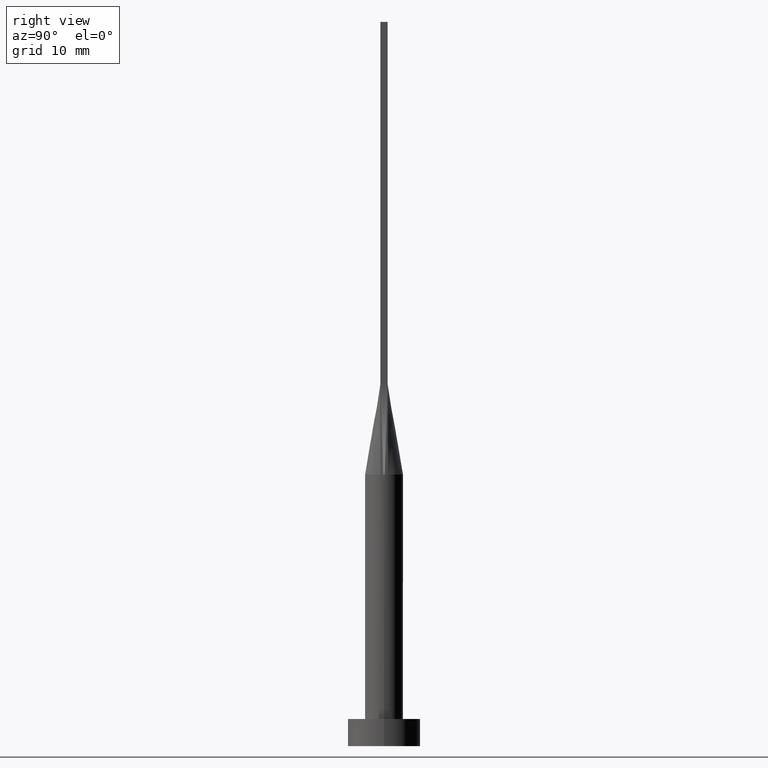
[diagram: clean part render]
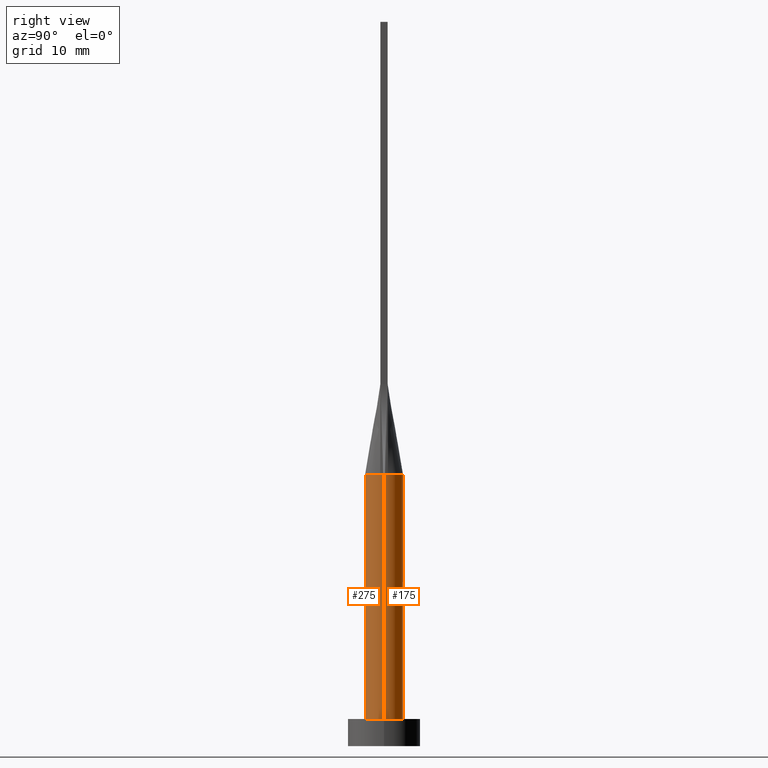
[diagram: same view with one multi-face feature highlighted, each face labeled with its STEP entity id]
A machine part, right view. The highlighted faces form ONE feature: a constant-radius fillet chain: 2 tangent blend faces with common blend radius 2.1 mm. The faces share edges in the B-rep.
Their STEP definitions:
[1] entity #275 (Cylinder):
#2 = CIRCLE ( 'NONE', #452, 2.100000000000000089 ) ;
#9 = AXIS2_PLACEMENT_3D ( 'NONE', #535, #541, #233 ) ;
#15 = ORIENTED_EDGE ( 'NONE', *, *, #580, .F. ) ;
#32 = DIRECTION ( 'NONE',  ( -1.000000000000000000, 0.000000000000000000, 0.000000000000000000 ) ) ;
#35 = CARTESIAN_POINT ( 'NONE',  ( -2.100000000000000089, 0.000000000000000000, 3.000000000000000000 ) ) ;
#50 = CIRCLE ( 'NONE', #9, 2.100000000000000089 ) ;
#63 = EDGE_CURVE ( 'NONE', #465, #297, #539, .T. ) ;
#67 = ORIENTED_EDGE ( 'NONE', *, *, #153, .F. ) ;
#70 = AXIS2_PLACEMENT_3D ( 'NONE', #534, #397, #171 ) ;
#115 = DIRECTION ( 'NONE',  ( 0.000000000000000000, 0.000000000000000000, 1.000000000000000000 ) ) ;
#122 = EDGE_CURVE ( 'NONE', #473, #501, #564, .T. ) ;
#139 = CARTESIAN_POINT ( 'NONE',  ( 2.100000000000000089, 2.571758278209441957E-16, 30.00000000000000000 ) ) ;
#150 = CARTESIAN_POINT ( 'NONE',  ( -2.099758441344840243, -1.448674240509545331E-15, 30.00000000000000000 ) ) ;
#153 = EDGE_CURVE ( 'NONE', #481, #473, #2, .T. ) ;
#170 = EDGE_LOOP ( 'NONE', ( #563, #15, #428, #67, #291, #285 ) ) ;
#171 = DIRECTION ( 'NONE',  ( 1.000000000000000000, -8.881784197001252323E-16, 0.000000000000000000 ) ) ;
#172 = CIRCLE ( 'NONE', #70, 2.100000000000000089 ) ;
#198 = VECTOR ( 'NONE', #495, 1000.000000000000000 ) ;
#215 = DIRECTION ( 'NONE',  ( 1.000000000000000000, 0.000000000000000000, 0.000000000000000000 ) ) ;
#228 = DIRECTION ( 'NONE',  ( -0.000000000000000000, -0.000000000000000000, -1.000000000000000000 ) ) ;
#231 = CYLINDRICAL_SURFACE ( 'NONE', #405, 2.100000000000000089 ) ;
#233 = DIRECTION ( 'NONE',  ( 1.000000000000000000, 0.000000000000000000, 0.000000000000000000 ) ) ;
#235 = EDGE_CURVE ( 'NONE', #252, #297, #50, .T. ) ;
#252 = VERTEX_POINT ( 'NONE', #35 ) ;
#275 = ADVANCED_FACE ( 'NONE', ( #572 ), #231, .T. ) ;
#279 = CARTESIAN_POINT ( 'NONE',  ( -2.100000000000000089, 0.000000000000000000, 30.00000000000000000 ) ) ;
#282 = LINE ( 'NONE', #279, #284 ) ;
#284 = VECTOR ( 'NONE', #463, 1000.000000000000000 ) ;
#285 = ORIENTED_EDGE ( 'NONE', *, *, #235, .T. ) ;
#291 = ORIENTED_EDGE ( 'NONE', *, *, #409, .T. ) ;
#297 = VERTEX_POINT ( 'NONE', #569 ) ;
#332 = CARTESIAN_POINT ( 'NONE',  ( 2.099758441344840243, 4.928843353830161703E-16, 30.00000000000000000 ) ) ;
#345 = AXIS2_PLACEMENT_3D ( 'NONE', #385, #115, #528 ) ;
#380 = DIRECTION ( 'NONE',  ( 0.000000000000000000, 0.000000000000000000, 1.000000000000000000 ) ) ;
#385 = CARTESIAN_POINT ( 'NONE',  ( 0.000000000000000000, 0.000000000000000000, 30.00000000000000000 ) ) ;
#397 = DIRECTION ( 'NONE',  ( 0.000000000000000000, 0.000000000000000000, 1.000000000000000000 ) ) ;
#405 = AXIS2_PLACEMENT_3D ( 'NONE', #487, #228, #32 ) ;
#409 = EDGE_CURVE ( 'NONE', #481, #252, #282, .T. ) ;
#428 = ORIENTED_EDGE ( 'NONE', *, *, #122, .F. ) ;
#452 = AXIS2_PLACEMENT_3D ( 'NONE', #478, #380, #215 ) ;
#463 = DIRECTION ( 'NONE',  ( -0.000000000000000000, -0.000000000000000000, -1.000000000000000000 ) ) ;
#465 = VERTEX_POINT ( 'NONE', #332 ) ;
#473 = VERTEX_POINT ( 'NONE', #554 ) ;
#478 = CARTESIAN_POINT ( 'NONE',  ( 0.000000000000000000, 0.000000000000000000, 30.00000000000000000 ) ) ;
#481 = VERTEX_POINT ( 'NONE', #150 ) ;
#487 = CARTESIAN_POINT ( 'NONE',  ( 0.000000000000000000, 0.000000000000000000, 30.00000000000000000 ) ) ;
#495 = DIRECTION ( 'NONE',  ( -0.000000000000000000, -0.000000000000000000, -1.000000000000000000 ) ) ;
#501 = VERTEX_POINT ( 'NONE', #513 ) ;
#513 = CARTESIAN_POINT ( 'NONE',  ( 2.055161022591414977, -0.4326655822303633325, 30.00000000000000000 ) ) ;
#528 = DIRECTION ( 'NONE',  ( 1.000000000000000000, 0.000000000000000000, 0.000000000000000000 ) ) ;
#534 = CARTESIAN_POINT ( 'NONE',  ( 0.000000000000000000, 0.000000000000000000, 30.00000000000000000 ) ) ;
#535 = CARTESIAN_POINT ( 'NONE',  ( 0.000000000000000000, 0.000000000000000000, 3.000000000000000000 ) ) ;
#539 = LINE ( 'NONE', #139, #198 ) ;
#541 = DIRECTION ( 'NONE',  ( 0.000000000000000000, 0.000000000000000000, 1.000000000000000000 ) ) ;
#554 = CARTESIAN_POINT ( 'NONE',  ( -2.055145036631130129, -0.4326623253166036465, 30.00000000000000000 ) ) ;
#563 = ORIENTED_EDGE ( 'NONE', *, *, #63, .F. ) ;
#564 = CIRCLE ( 'NONE', #345, 2.100000000000000089 ) ;
#569 = CARTESIAN_POINT ( 'NONE',  ( 2.100000000000000089, 2.571758278209441957E-16, 3.000000000000000000 ) ) ;
#572 = FACE_OUTER_BOUND ( 'NONE', #170, .T. ) ;
#580 = EDGE_CURVE ( 'NONE', #501, #465, #172, .T. ) ;
[2] entity #175 (Cylinder):
#5 = CIRCLE ( 'NONE', #359, 2.100000000000000089 ) ;
#31 = CARTESIAN_POINT ( 'NONE',  ( 0.000000000000000000, 0.000000000000000000, 3.000000000000000000 ) ) ;
#35 = CARTESIAN_POINT ( 'NONE',  ( -2.100000000000000089, 0.000000000000000000, 3.000000000000000000 ) ) ;
#39 = CARTESIAN_POINT ( 'NONE',  ( -1.960396204527856456, 0.7808940436533434726, 30.00000000000000000 ) ) ;
#45 = EDGE_CURVE ( 'NONE', #456, #72, #467, .T. ) ;
#63 = EDGE_CURVE ( 'NONE', #465, #297, #539, .T. ) ;
#66 = CYLINDRICAL_SURFACE ( 'NONE', #504, 2.100000000000000089 ) ;
#72 = VERTEX_POINT ( 'NONE', #454 ) ;
#74 = DIRECTION ( 'NONE',  ( 0.000000000000000000, 0.000000000000000000, 1.000000000000000000 ) ) ;
#80 = CARTESIAN_POINT ( 'NONE',  ( 1.638039177766652754, 1.336522195786985057, 30.00000000000000711 ) ) ;
#87 = CARTESIAN_POINT ( 'NONE',  ( -1.069497409764671003, 1.827724181718571872, 29.99999999999999645 ) ) ;
#136 = CARTESIAN_POINT ( 'NONE',  ( 1.288188016604684183, 1.676316068528189041, 30.00000000000000355 ) ) ;
#139 = CARTESIAN_POINT ( 'NONE',  ( 2.100000000000000089, 2.571758278209441957E-16, 30.00000000000000000 ) ) ;
#142 = AXIS2_PLACEMENT_3D ( 'NONE', #325, #545, #144 ) ;
#143 = ORIENTED_EDGE ( 'NONE', *, *, #45, .F. ) ;
#144 = DIRECTION ( 'NONE',  ( 1.000000000000000000, 0.000000000000000000, 0.000000000000000000 ) ) ;
#150 = CARTESIAN_POINT ( 'NONE',  ( -2.099758441344840243, -1.448674240509545331E-15, 30.00000000000000000 ) ) ;
#151 = CIRCLE ( 'NONE', #142, 2.100000000000000089 ) ;
#175 = ADVANCED_FACE ( 'NONE', ( #476 ), #66, .T. ) ;
#177 = DIRECTION ( 'NONE',  ( -1.000000000000000000, 0.000000000000000000, 0.000000000000000000 ) ) ;
#178 = CARTESIAN_POINT ( 'NONE',  ( 0.5670887265440297531, 2.040296735810463780, 30.00000000000000000 ) ) ;
#181 = DIRECTION ( 'NONE',  ( 0.000000000000000000, 0.000000000000000000, 1.000000000000000000 ) ) ;
#184 = DIRECTION ( 'NONE',  ( 1.000000000000000000, 0.000000000000000000, 0.000000000000000000 ) ) ;
#197 = EDGE_LOOP ( 'NONE', ( #431, #331, #343, #261, #381, #143 ) ) ;
#198 = VECTOR ( 'NONE', #495, 1000.000000000000000 ) ;
#232 = CARTESIAN_POINT ( 'NONE',  ( -2.055148177435248691, 0.4326628259079252081, 30.00000000000000000 ) ) ;
#251 = CARTESIAN_POINT ( 'NONE',  ( 0.000000000000000000, 0.000000000000000000, 30.00000000000000000 ) ) ;
#252 = VERTEX_POINT ( 'NONE', #35 ) ;
#261 = ORIENTED_EDGE ( 'NONE', *, *, #409, .F. ) ;
#265 = CARTESIAN_POINT ( 'NONE',  ( 0.2839879338753505955, 2.100000000000000533, 30.00000000000000000 ) ) ;
#271 = CARTESIAN_POINT ( 'NONE',  ( -1.288188016604684183, 1.676316068528189263, 30.00000000000000355 ) ) ;
#279 = CARTESIAN_POINT ( 'NONE',  ( -2.100000000000000089, 0.000000000000000000, 30.00000000000000000 ) ) ;
#282 = LINE ( 'NONE', #279, #284 ) ;
#284 = VECTOR ( 'NONE', #463, 1000.000000000000000 ) ;
#297 = VERTEX_POINT ( 'NONE', #569 ) ;
#309 = EDGE_CURVE ( 'NONE', #465, #456, #382, .T. ) ;
#314 = CARTESIAN_POINT ( 'NONE',  ( 1.069497409764671003, 1.827724181718572538, 30.00000000000000355 ) ) ;
#317 = CARTESIAN_POINT ( 'NONE',  ( -1.638039177766652976, 1.336522195786985057, 30.00000000000000355 ) ) ;
#325 = CARTESIAN_POINT ( 'NONE',  ( 0.000000000000000000, 0.000000000000000000, 30.00000000000000000 ) ) ;
#331 = ORIENTED_EDGE ( 'NONE', *, *, #63, .T. ) ;
#332 = CARTESIAN_POINT ( 'NONE',  ( 2.099758441344840243, 4.928843353830161703E-16, 30.00000000000000000 ) ) ;
#343 = ORIENTED_EDGE ( 'NONE', *, *, #568, .T. ) ;
#353 = CARTESIAN_POINT ( 'NONE',  ( -0.2839879338753505955, 2.100000000000000533, 30.00000000000000000 ) ) ;
#359 = AXIS2_PLACEMENT_3D ( 'NONE', #31, #74, #530 ) ;
#361 = CARTESIAN_POINT ( 'NONE',  ( -2.019676033883313959, 0.6001949545017503107, 30.00000000000000355 ) ) ;
#363 = DIRECTION ( 'NONE',  ( -0.000000000000000000, -0.000000000000000000, -1.000000000000000000 ) ) ;
#372 = CARTESIAN_POINT ( 'NONE',  ( 2.055132260641998609, 0.4326595789354660826, 30.00000000000000000 ) ) ;
#381 = ORIENTED_EDGE ( 'NONE', *, *, #429, .F. ) ;
#382 = CIRCLE ( 'NONE', #496, 2.100000000000000089 ) ;
#399 = CARTESIAN_POINT ( 'NONE',  ( 1.960396204527856900, 0.7808940436533436946, 30.00000000000000355 ) ) ;
#408 = CARTESIAN_POINT ( 'NONE',  ( -1.769939800381045147, 1.149026496286139842, 30.00000000000000000 ) ) ;
#409 = EDGE_CURVE ( 'NONE', #481, #252, #282, .T. ) ;
#429 = EDGE_CURVE ( 'NONE', #72, #481, #151, .T. ) ;
#431 = ORIENTED_EDGE ( 'NONE', *, *, #309, .F. ) ;
#449 = CARTESIAN_POINT ( 'NONE',  ( 2.055132260641998609, 0.4326595789354660826, 30.00000000000000000 ) ) ;
#454 = CARTESIAN_POINT ( 'NONE',  ( -2.055148177435248691, 0.4326628259079252081, 30.00000000000000000 ) ) ;
#456 = VERTEX_POINT ( 'NONE', #372 ) ;
#463 = DIRECTION ( 'NONE',  ( -0.000000000000000000, -0.000000000000000000, -1.000000000000000000 ) ) ;
#465 = VERTEX_POINT ( 'NONE', #332 ) ;
#467 = B_SPLINE_CURVE_WITH_KNOTS ( 'NONE', 3,
 ( #449, #486, #399, #536, #80, #136, #314, #178, #265, #353, #493, #87, #271, #317, #408, #39, #361, #232 ),
 .UNSPECIFIED., .F., .F.,
 ( 4, 2, 2, 2, 2, 2, 2, 2, 4 ),
 ( 0.000000000000000000, 0.1250000000000000000, 0.2500000000000000000, 0.3750000000000000000, 0.5000000000000000000, 0.6250000000000000000, 0.7500000000000000000, 0.8750000000000000000, 1.000000000000000000 ),
 .UNSPECIFIED. ) ;
#476 = FACE_OUTER_BOUND ( 'NONE', #197, .T. ) ;
#481 = VERTEX_POINT ( 'NONE', #150 ) ;
#486 = CARTESIAN_POINT ( 'NONE',  ( 2.019676033883313515, 0.6001949545017501997, 30.00000000000000000 ) ) ;
#493 = CARTESIAN_POINT ( 'NONE',  ( -0.5670887265440298641, 2.040296735810464668, 30.00000000000000000 ) ) ;
#495 = DIRECTION ( 'NONE',  ( -0.000000000000000000, -0.000000000000000000, -1.000000000000000000 ) ) ;
#496 = AXIS2_PLACEMENT_3D ( 'NONE', #531, #181, #184 ) ;
#504 = AXIS2_PLACEMENT_3D ( 'NONE', #251, #363, #177 ) ;
#530 = DIRECTION ( 'NONE',  ( 1.000000000000000000, 0.000000000000000000, 0.000000000000000000 ) ) ;
#531 = CARTESIAN_POINT ( 'NONE',  ( 0.000000000000000000, 0.000000000000000000, 30.00000000000000000 ) ) ;
#536 = CARTESIAN_POINT ( 'NONE',  ( 1.769939800381044259, 1.149026496286139620, 29.99999999999999645 ) ) ;
#539 = LINE ( 'NONE', #139, #198 ) ;
#545 = DIRECTION ( 'NONE',  ( 0.000000000000000000, 0.000000000000000000, 1.000000000000000000 ) ) ;
#568 = EDGE_CURVE ( 'NONE', #297, #252, #5, .T. ) ;
#569 = CARTESIAN_POINT ( 'NONE',  ( 2.100000000000000089, 2.571758278209441957E-16, 3.000000000000000000 ) ) ;